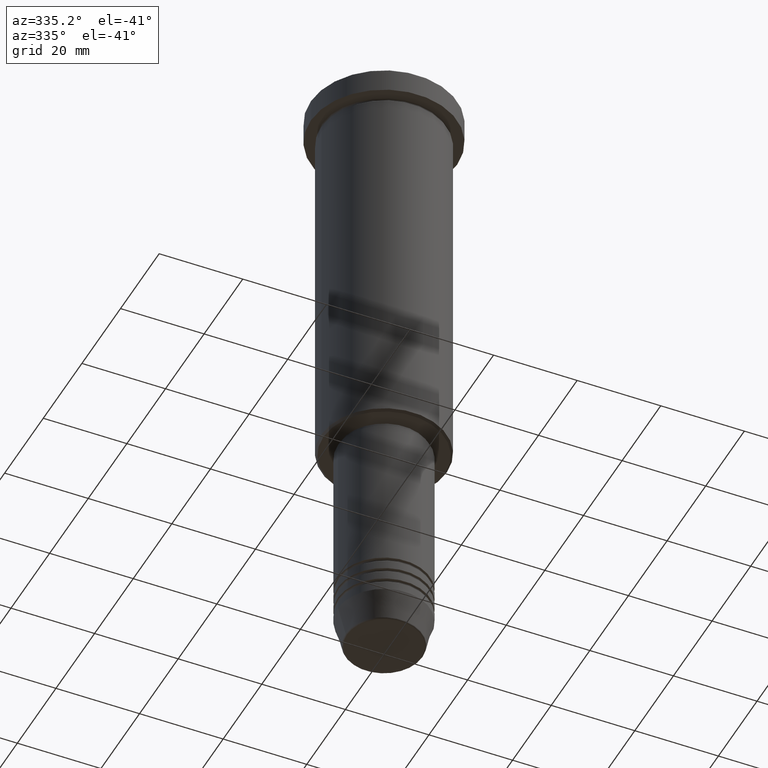
[diagram: clean part render]
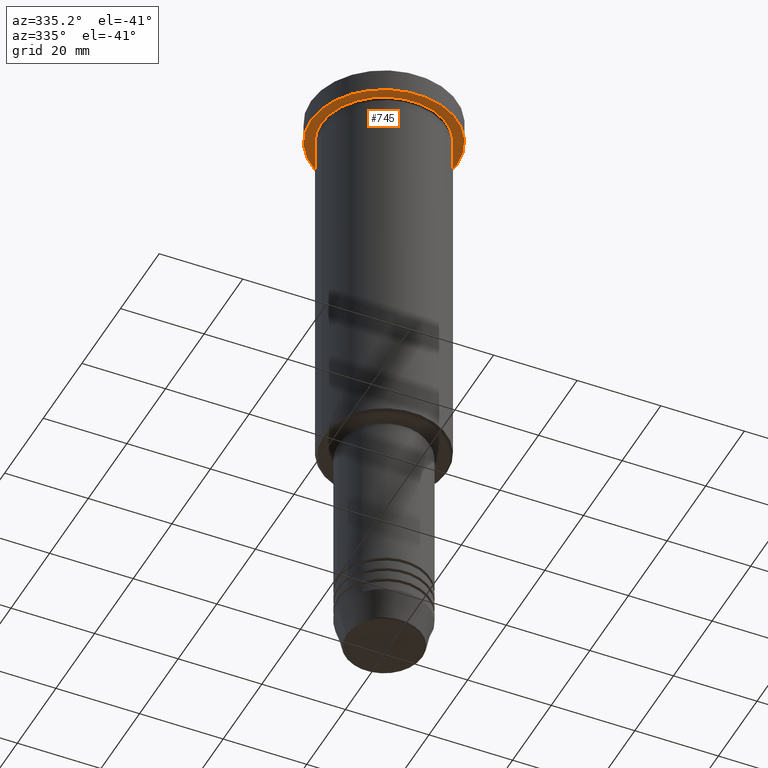
[diagram: same view with one face highlighted and labeled with its STEP entity id]
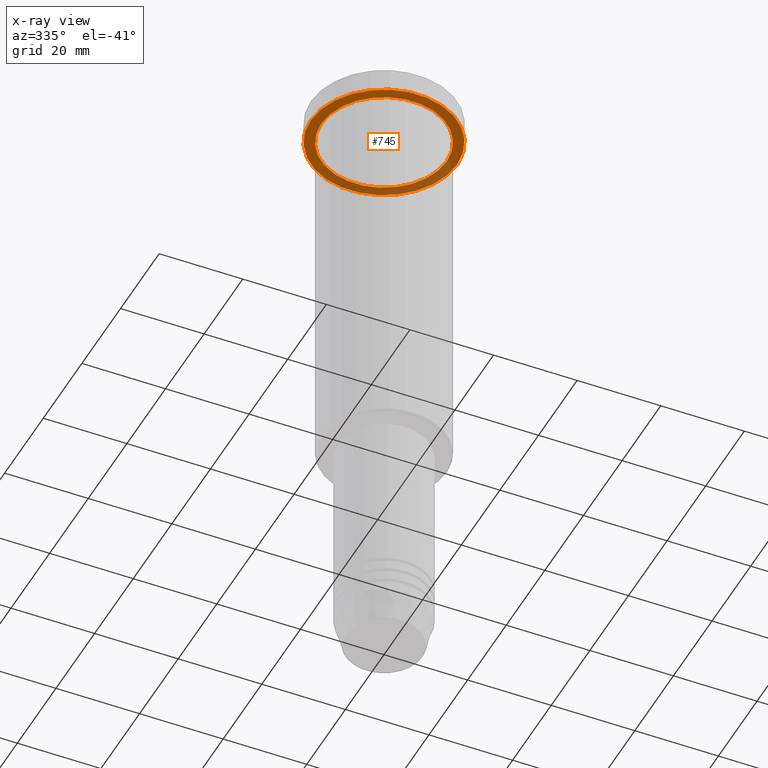
[diagram: x-ray of the same camera — body ghosted, the highlighted face saturated]
A machine part, auxiliary view. The second image highlights one B-rep face of the part: STEP entity #745.
The next image is the same camera in x-ray: the body ghosted, the highlighted face saturated — about 35% of this face is hidden behind the body in this view.
In plain terms, the highlighted planar face has unit normal (0, 0, -1).
Its self-contained STEP definition (entity closure, byte-faithful):
#13 = CIRCLE ( 'NONE', #58, 17.50000000000000000 ) ;
#58 = AXIS2_PLACEMENT_3D ( 'NONE', #84, #725, #987 ) ;
#84 = CARTESIAN_POINT ( 'NONE',  ( 0.000000000000000000, 0.000000000000000000, -5.999999999999995559 ) ) ;
#151 = EDGE_LOOP ( 'NONE', ( #989, #1181 ) ) ;
#200 = VERTEX_POINT ( 'NONE', #948 ) ;
#208 = DIRECTION ( 'NONE',  ( 0.000000000000000000, 0.000000000000000000, -1.000000000000000000 ) ) ;
#213 = VERTEX_POINT ( 'NONE', #1130 ) ;
#217 = FACE_OUTER_BOUND ( 'NONE', #151, .T. ) ;
#344 = AXIS2_PLACEMENT_3D ( 'NONE', #478, #208, #1128 ) ;
#455 = DIRECTION ( 'NONE',  ( -0.000000000000000000, -0.000000000000000000, 1.000000000000000000 ) ) ;
#478 = CARTESIAN_POINT ( 'NONE',  ( 0.000000000000000000, 17.50000000000000000, -5.999999999999995559 ) ) ;
#480 = VERTEX_POINT ( 'NONE', #877 ) ;
#535 = EDGE_CURVE ( 'NONE', #480, #213, #651, .T. ) ;
#539 = DIRECTION ( 'NONE',  ( -0.000000000000000000, -0.000000000000000000, 1.000000000000000000 ) ) ;
#562 = PLANE ( 'NONE',  #344 ) ;
#579 = EDGE_LOOP ( 'NONE', ( #642, #844 ) ) ;
#619 = AXIS2_PLACEMENT_3D ( 'NONE', #1092, #539, #645 ) ;
#642 = ORIENTED_EDGE ( 'NONE', *, *, #1001, .T. ) ;
#645 = DIRECTION ( 'NONE',  ( 1.000000000000000000, 0.000000000000000000, 0.000000000000000000 ) ) ;
#651 = CIRCLE ( 'NONE', #619, 17.50000000000000000 ) ;
#675 = AXIS2_PLACEMENT_3D ( 'NONE', #1151, #455, #1082 ) ;
#676 = FACE_BOUND ( 'NONE', #579, .T. ) ;
#725 = DIRECTION ( 'NONE',  ( -0.000000000000000000, -0.000000000000000000, 1.000000000000000000 ) ) ;
#745 = ADVANCED_FACE ( 'NONE', ( #676, #217 ), #562, .T. ) ;
#844 = ORIENTED_EDGE ( 'NONE', *, *, #1016, .T. ) ;
#877 = CARTESIAN_POINT ( 'NONE',  ( -17.50000000000000000, 2.143131898507868248E-15, -5.999999999999995559 ) ) ;
#899 = VERTEX_POINT ( 'NONE', #964 ) ;
#915 = DIRECTION ( 'NONE',  ( -0.000000000000000000, -0.000000000000000000, 1.000000000000000000 ) ) ;
#948 = CARTESIAN_POINT ( 'NONE',  ( 15.00000000000000000, 1.836970198721029589E-15, -5.999999999999994671 ) ) ;
#964 = CARTESIAN_POINT ( 'NONE',  ( -15.00000000000000000, 0.000000000000000000, -5.999999999999994671 ) ) ;
#982 = EDGE_CURVE ( 'NONE', #213, #480, #13, .T. ) ;
#987 = DIRECTION ( 'NONE',  ( 1.000000000000000000, 0.000000000000000000, 0.000000000000000000 ) ) ;
#989 = ORIENTED_EDGE ( 'NONE', *, *, #982, .F. ) ;
#999 = DIRECTION ( 'NONE',  ( -1.000000000000000000, 0.000000000000000000, 0.000000000000000000 ) ) ;
#1001 = EDGE_CURVE ( 'NONE', #899, #200, #1143, .T. ) ;
#1016 = EDGE_CURVE ( 'NONE', #200, #899, #1124, .T. ) ;
#1032 = AXIS2_PLACEMENT_3D ( 'NONE', #1170, #915, #999 ) ;
#1082 = DIRECTION ( 'NONE',  ( -1.000000000000000000, 0.000000000000000000, 0.000000000000000000 ) ) ;
#1092 = CARTESIAN_POINT ( 'NONE',  ( 0.000000000000000000, 0.000000000000000000, -5.999999999999995559 ) ) ;
#1124 = CIRCLE ( 'NONE', #1032, 15.00000000000000000 ) ;
#1128 = DIRECTION ( 'NONE',  ( -1.000000000000000000, 0.000000000000000000, -0.000000000000000000 ) ) ;
#1130 = CARTESIAN_POINT ( 'NONE',  ( 17.50000000000000000, 0.000000000000000000, -5.999999999999995559 ) ) ;
#1143 = CIRCLE ( 'NONE', #675, 15.00000000000000000 ) ;
#1151 = CARTESIAN_POINT ( 'NONE',  ( 0.000000000000000000, 0.000000000000000000, -5.999999999999995559 ) ) ;
#1170 = CARTESIAN_POINT ( 'NONE',  ( 0.000000000000000000, 0.000000000000000000, -5.999999999999995559 ) ) ;
#1181 = ORIENTED_EDGE ( 'NONE', *, *, #535, .F. ) ;